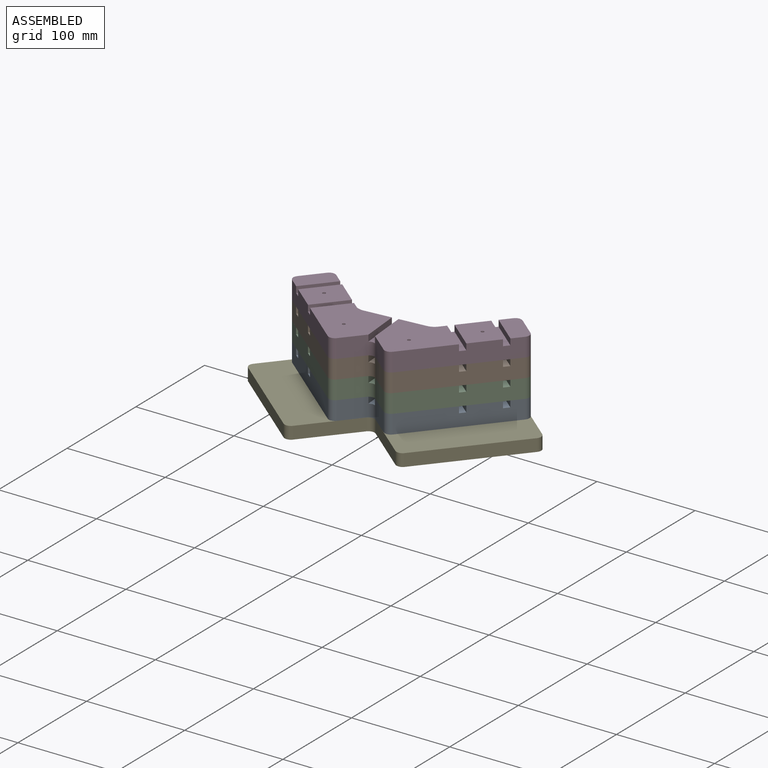
[diagram: assembled view]
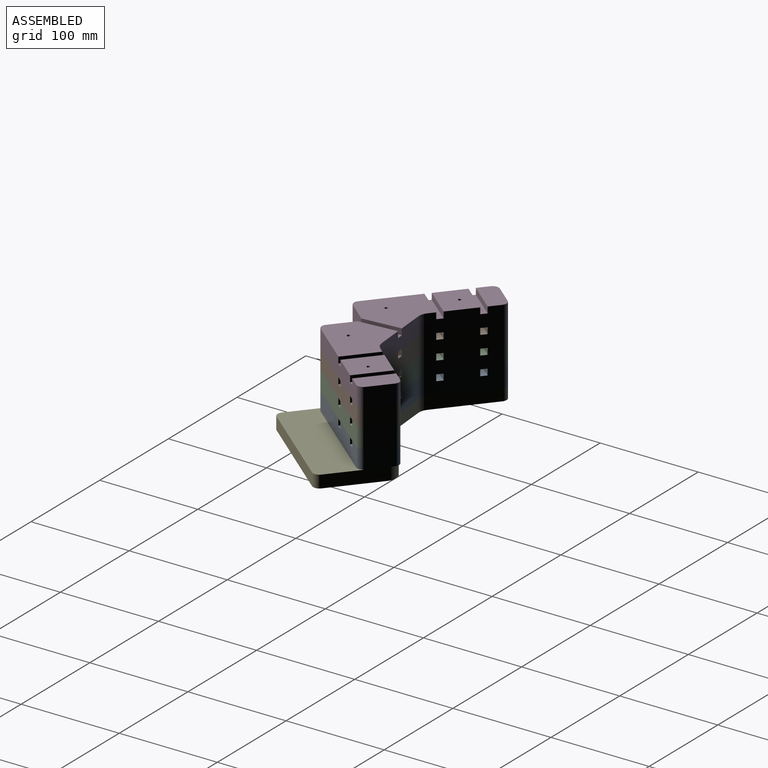
[diagram: assembled view, second angle]
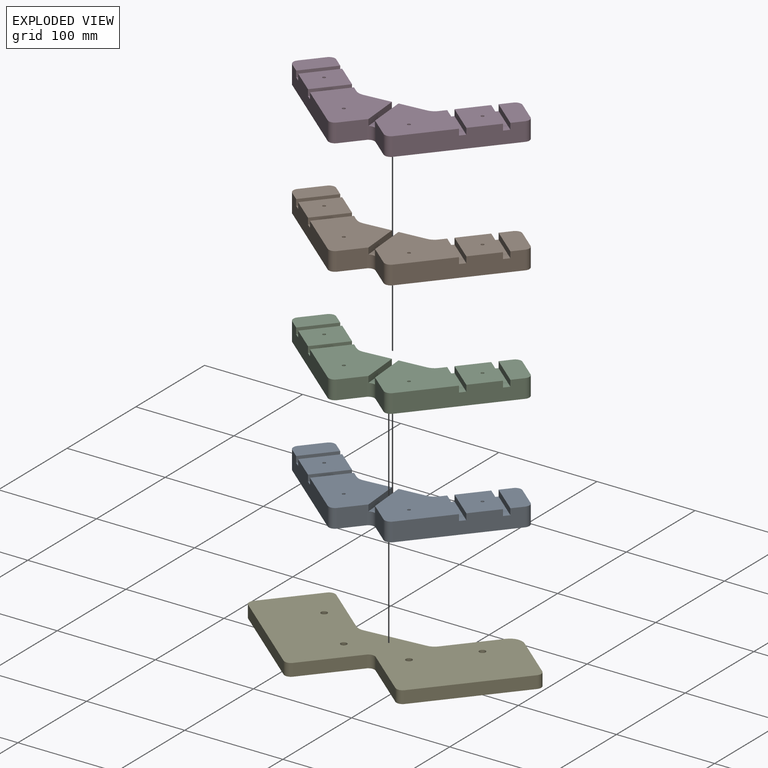
[diagram: exploded view]
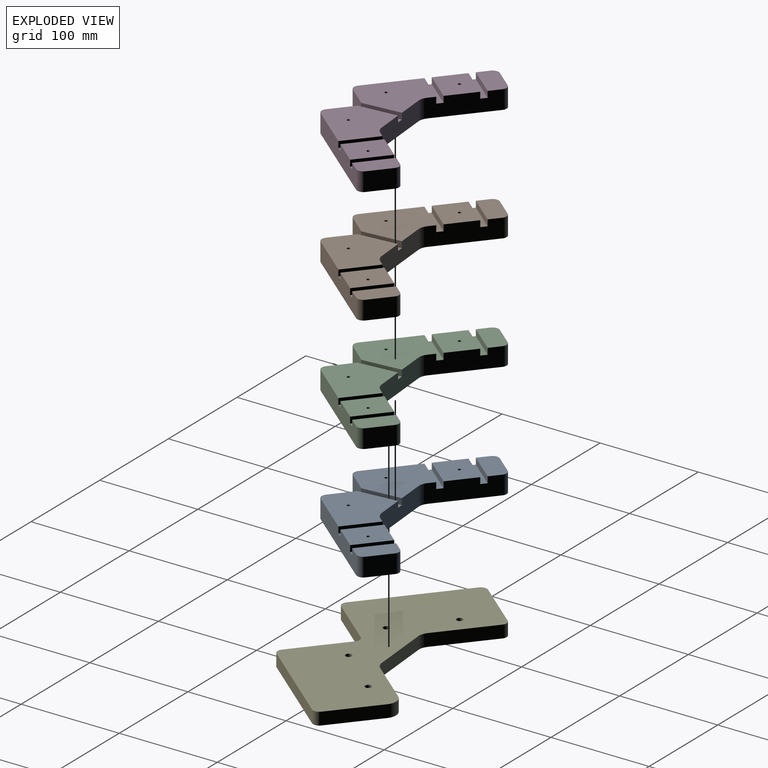
[diagram: exploded view, second angle]
ASSEMBLY  parts=5 mates=11
PART A: 44 faces, bbox 165.1x165.1x19.1 mm
  f0: cylinder r=6.35mm len=19.05mm, axis (0,0,-1), area 147.8mm2, adj f8,f13,f14,f27,f28,f35,f36,f37
  f1: plane 114.3x19.05mm, normal (0,-1,0), area 2096.8mm2, adj f5,f8,f9,f15,f16,f28,f38,f39
  f2: plane 64.59x19.05mm, normal (0,1,0), area 1149.8mm2, adj f5,f8,f9,f18,f19,f28,f38,f39
  f3: plane 43.36x43.36mm, normal (0.71,0.71,0), area 1127.8mm2, adj f8,f19,f20,f27,f28,f35,f36,f37
  f4: plane 64.59x19.05mm, normal (1,0,0), area 1149.8mm2, adj f6,f7,f20,f21,f27,f28,f29,f30
  f5: plane 38.1x19.05mm, normal (0,0,1), area 708.5mm2, adj f1,f2,f16,f17,f18,f42
  f6: plane 38.1x19.05mm, normal (0,0,1), area 708.5mm2, adj f4,f10,f11,f21,f26,f32
  f7: plane 38.1x31.75mm, normal (0,0,1), area 1201.8mm2, adj f4,f11,f22,f29,f33
  f8: plane 63.72x61.26mm, normal (0,0,1), area 2932.5mm2, adj f0,f1,f2,f3,f14,f15,f19,f24
  f9: plane 38.1x31.75mm, normal (0,0,1), area 1201.8mm2, adj f1,f2,f25,f39,f41
  f10: cylinder r=6.35mm len=19.05mm, axis (0,0,-1), area 190mm2, adj f6,f11,f26,f28
  f11: plane 114.3x19.05mm, normal (-1,0,0), area 2096.8mm2, adj f6,f7,f10,f12,f27,f28,f29,f30
  f12: cylinder r=6.35mm len=19.05mm, axis (0,0,-1), area 190mm2, adj f11,f13,f27,f28
  f13: plane 25.4x19.05mm, normal (0,-1,0), area 483.9mm2, adj f0,f12,f27,f28
  f14: plane 25.4x19.05mm, normal (-1,0,0), area 483.9mm2, adj f0,f8,f15,f28
  f15: cylinder r=6.35mm len=19.05mm, axis (0,0,-1), area 190mm2, adj f1,f8,f14,f28
  f16: cylinder r=6.35mm len=19.05mm, axis (0,0,-1), area 190mm2, adj f1,f5,f17,f28
  f17: plane 25.4x19.05mm, normal (1,0,0), area 483.9mm2, adj f5,f16,f18,f28
  f18: cylinder r=6.35mm len=19.05mm, axis (0,0,-1), area 190mm2, adj f2,f5,f17,f28
  f19: cylinder r=12.7mm len=19.05mm, axis (0,0,-1), area 190mm2, adj f2,f3,f8,f28
  f20: cylinder r=12.7mm len=19.05mm, axis (0,0,-1), area 190mm2, adj f3,f4,f27,f28
  f21: cylinder r=6.35mm len=19.05mm, axis (0,0,-1), area 190mm2, adj f4,f6,f26,f28
  f22: cylinder r=1.59mm len=19.05mm, axis (0,0,-1), area 190mm2, adj f7,f28
  f23: cylinder r=1.59mm len=19.05mm, axis (0,0,-1), area 190mm2, adj f27,f28
  f24: cylinder r=1.59mm len=19.05mm, axis (0,0,-1), area 190mm2, adj f8,f28
  f25: cylinder r=1.59mm len=19.05mm, axis (0,0,-1), area 190mm2, adj f9,f28
  f26: plane 25.4x19.05mm, normal (0,1,0), area 483.9mm2, adj f6,f10,f21,f28
  f27: plane 63.72x61.26mm, normal (0,0,1), area 2932.5mm2, adj f0,f3,f4,f11,f12,f13,f20,f23
  f28: plane 165.1x165.1mm, normal (0,0,-1), area 10899.7mm2, adj f0,f1,f2,f3,f4,f10,f11,f12
  f29: plane 38.1x6.35mm, normal (0,-1,0), area 241.9mm2, adj f4,f7,f11,f31
  f30: plane 38.1x6.35mm, normal (0,1,0), area 241.9mm2, adj f4,f11,f27,f31
  f31: plane 38.1x6.35mm, normal (0,0,1), area 241.9mm2, adj f4,f11,f29,f30
  f32: plane 38.1x6.35mm, normal (0,-1,0), area 241.9mm2, adj f4,f6,f11,f34
  f33: plane 38.1x6.35mm, normal (0,1,0), area 241.9mm2, adj f4,f7,f11,f34
  f34: plane 38.1x6.35mm, normal (0,0,1), area 241.9mm2, adj f4,f11,f32,f33
  f35: plane 27.86x27.86mm, normal (-0.71,0.71,0), area 250.2mm2, adj f0,f3,f8,f37
  f36: plane 27.86x27.86mm, normal (0.71,-0.71,0), area 250.2mm2, adj f0,f3,f27,f37
  f37: plane 32.35x32.35mm, normal (0,0,1), area 246.6mm2, adj f0,f3,f35,f36
  f38: plane 38.1x6.35mm, normal (1,0,0), area 241.9mm2, adj f1,f2,f8,f40
  f39: plane 38.1x6.35mm, normal (-1,0,0), area 241.9mm2, adj f1,f2,f9,f40
  f40: plane 38.1x6.35mm, normal (0,0,1), area 241.9mm2, adj f1,f2,f38,f39
  f41: plane 38.1x6.35mm, normal (1,0,0), area 241.9mm2, adj f1,f2,f9,f43
  f42: plane 38.1x6.35mm, normal (-1,0,0), area 241.9mm2, adj f1,f2,f5,f43
  f43: plane 38.1x6.35mm, normal (0,0,1), area 241.9mm2, adj f1,f2,f41,f42
PART B: same geometry as A
PART C: same geometry as A
PART D: same geometry as A
PART E: 24 faces, bbox 203.2x203.2x12.7 mm
  f0: plane 114.3x12.7mm, normal (0,-1,0), area 1451.6mm2, adj f1,f20,f22,f23
  f1: cylinder r=6.35mm len=12.7mm, axis (0,0,-1), area 126.7mm2, adj f0,f2,f22,f23
  f2: plane 57.15x12.7mm, normal (1,0,0), area 725.8mm2, adj f1,f3,f22,f23
  f3: cylinder r=12.7mm len=12.7mm, axis (0,0,-1), area 253.4mm2, adj f2,f4,f22,f23
  f4: plane 58.24x12.7mm, normal (0,1,0), area 739.6mm2, adj f3,f5,f22,f23
  f5: cylinder r=12.7mm len=12.7mm, axis (0,0,-1), area 126.7mm2, adj f4,f6,f22,f23
  f6: plane 43.36x43.36mm, normal (0.71,0.71,0), area 778.8mm2, adj f5,f7,f22,f23
  f7: cylinder r=12.7mm len=12.7mm, axis (0,0,-1), area 126.7mm2, adj f6,f8,f22,f23
  f8: plane 64.59x12.7mm, normal (1,0,0), area 820.3mm2, adj f7,f9,f22,f23
  f9: cylinder r=6.35mm len=12.7mm, axis (0,0,-1), area 126.7mm2, adj f8,f10,f22,f23
  f10: plane 63.5x12.7mm, normal (0,1,0), area 806.5mm2, adj f9,f11,f22,f23
  f11: cylinder r=6.35mm len=12.7mm, axis (0,0,-1), area 126.7mm2, adj f10,f12,f22,f23
  f12: plane 114.3x12.7mm, normal (-1,0,0), area 1451.6mm2, adj f11,f13,f22,f23
  f13: cylinder r=6.35mm len=12.7mm, axis (0,0,-1), area 126.7mm2, adj f12,f14,f22,f23
  f14: plane 63.5x12.7mm, normal (0,-1,0), area 806.5mm2, adj f13,f15,f22,f23
  f15: cylinder r=6.35mm len=12.7mm, axis (0,0,-1), area 126.7mm2, adj f14,f16,f22,f23
  f16: plane 63.5x12.7mm, normal (-1,0,0), area 806.5mm2, adj f15,f20,f22,f23
  f17: cylinder r=3.17mm len=12.7mm, axis (0,0,-1), area 253.4mm2, adj f22,f23
  f18: cylinder r=3.17mm len=12.7mm, axis (0,0,-1), area 253.4mm2, adj f22,f23
  f19: cylinder r=3.17mm len=12.7mm, axis (0,0,-1), area 253.4mm2, adj f22,f23
  f20: cylinder r=6.35mm len=12.7mm, axis (0,0,-1), area 126.7mm2, adj f0,f16,f22,f23
  f21: cylinder r=3.17mm len=12.7mm, axis (0,0,-1), area 253.4mm2, adj f22,f23
  f22: plane 203.2x203.2mm, normal (0,0,1), area 20456.2mm2, adj f0,f1,f2,f3,f4,f5,f6,f7
  f23: plane 203.2x203.2mm, normal (0,0,-1), area 20456.2mm2, adj f0,f1,f2,f3,f4,f5,f6,f7
PLACE A rot(axis=(0,0,1),50deg) t=(-135.68,-116.77,8.72)mm
PLACE B rot(axis=(0,0,1),50deg) t=(-135.68,-116.77,46.82)mm
PLACE C rot(axis=(0,0,1),50deg) t=(-135.68,-116.77,27.77)mm
PLACE D rot(axis=(0,0,1),50deg) t=(-135.68,-116.77,65.87)mm
PLACE E rot(axis=(0,0,1),50deg) t=(-135.68,-116.77,-3.98)mm
MATE cylindrical C.f22 <-> B.f22  axis (0,0,1) through (-216.03,-74.22,46.82)mm
MATE cylindrical A.f22 <-> C.f22  axis (0,0,1) through (-216.03,-74.22,27.77)mm
MATE planar D.f28 <-> B.f6  axis (0,0,-1) through (-65.68,-92.61,65.87)mm
MATE planar C.f28 <-> A.f6  axis (0,0,-1) through (-138.34,-86.4,27.77)mm
MATE cylindrical B.f25 <-> D.f25  axis (0,0,1) through (-63.95,-60.91,65.87)mm
MATE cylindrical A.f25 <-> C.f25  axis (0,0,1) through (-63.95,-60.91,27.77)mm
MATE planar E.f22 <-> A.f28  axis (0,0,1) through (-137.38,-98.67,8.72)mm
MATE cylindrical A.f22 <-> E.f19  axis (0,0,-1) through (-216.03,-74.22,8.72)mm
MATE planar B.f24 <-> C.f8  axis (0,0,-1) through (-104.76,-109.56,46.82)mm
MATE cylindrical E.f21 <-> A.f25  axis (0,0,1) through (-63.95,-60.91,8.72)mm
MATE cylindrical B.f22 <-> D.f22  axis (0,0,1) through (-216.03,-74.22,65.87)mm
